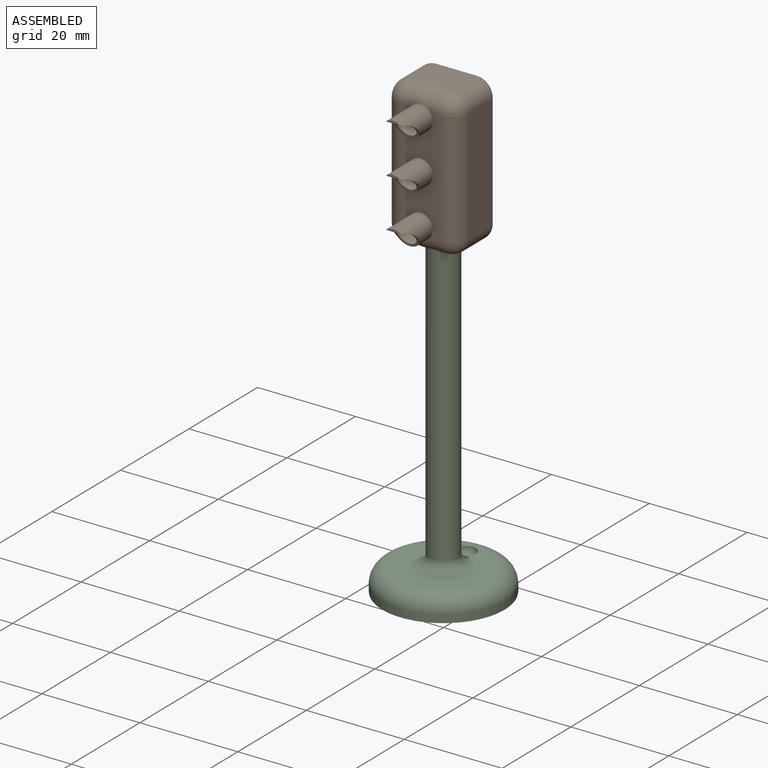
[diagram: assembled view]
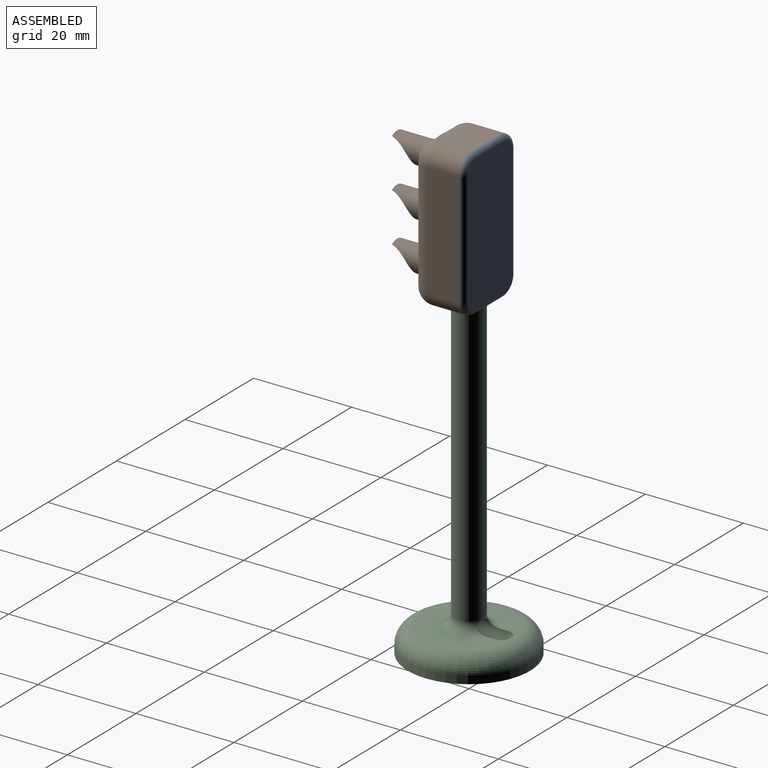
[diagram: assembled view, second angle]
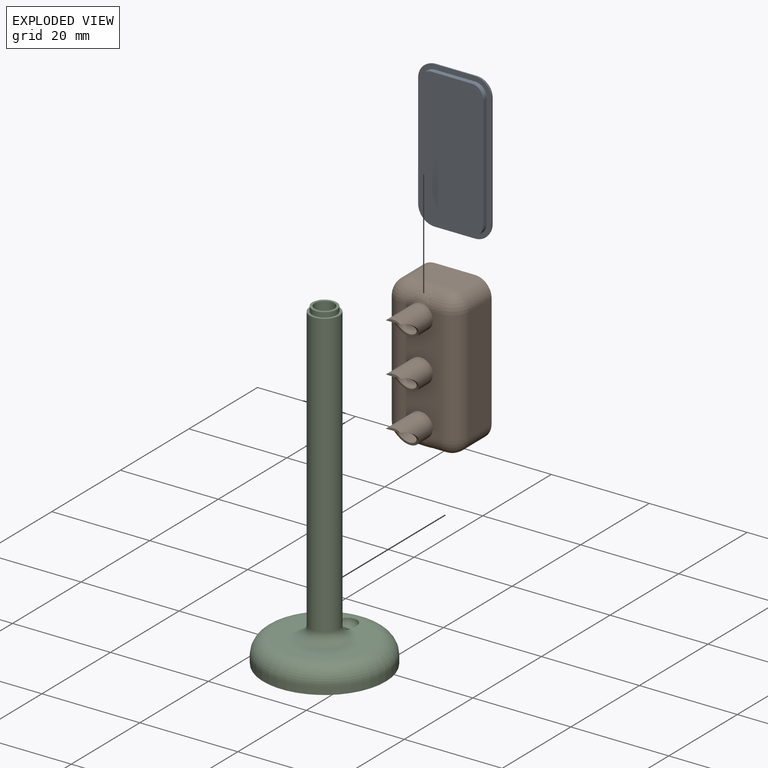
[diagram: exploded view]
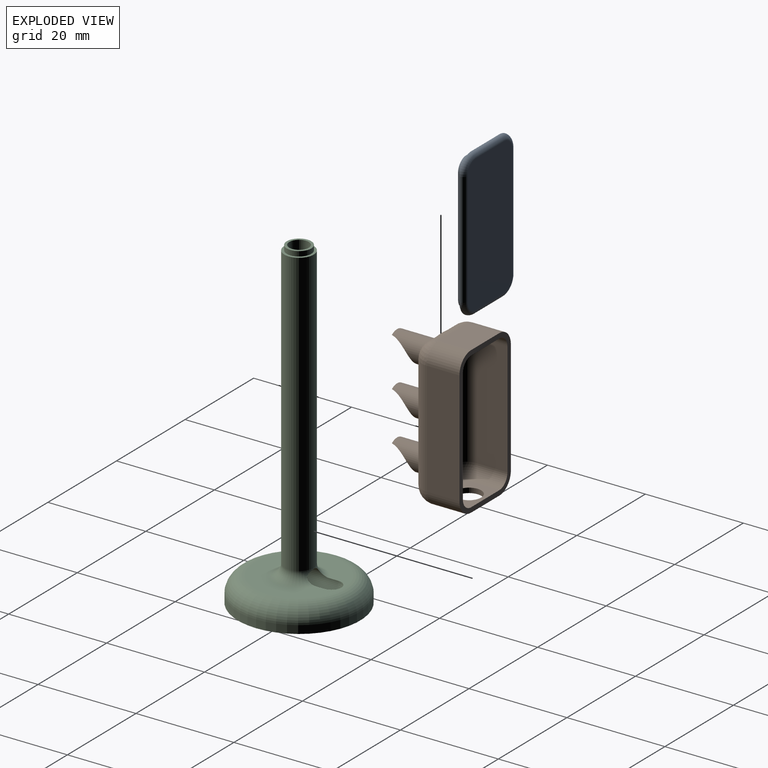
[diagram: exploded view, second angle]
ASSEMBLY  parts=3 mates=2
PART A: 19 faces, bbox 15.6x2x30.6 mm
  f0: cylinder r=2.38mm len=2.39mm, axis (0,1,0), area 3.7mm2, adj f1,f5,f8,f9
  f1: plane 8.25x1mm, normal (0,0,1), area 8.2mm2, adj f0,f2,f8,f9
  f2: cylinder r=2.38mm len=2.38mm, axis (0,1,0), area 3.7mm2, adj f1,f6,f8,f9
  f3: plane 8.24x1mm, normal (0,0,-1), area 8.2mm2, adj f4,f7,f8,f9
  f4: cylinder r=2.38mm len=2.38mm, axis (0,1,0), area 3.7mm2, adj f3,f5,f8,f9
  f5: plane 23.24x1mm, normal (-1,0,0), area 23.2mm2, adj f0,f4,f8,f9
  f6: plane 23.24x1mm, normal (1,0,0), area 23.2mm2, adj f2,f7,f8,f9
  f7: cylinder r=2.38mm len=2.38mm, axis (0,1,0), area 3.7mm2, adj f3,f6,f8,f9
  f8: plane 28x13mm, normal (0,-1,0), area 359.1mm2, adj f0,f1,f2,f3,f4,f5,f6,f7
  f9: plane 30x15mm, normal (0,-1,0), area 81.1mm2, adj f0,f1,f2,f3,f4,f5,f6,f7
  f10: plane 28x13mm, normal (0,1,0), area 359.1mm2, adj f11,f12,f13,f14,f15,f16,f17,f18
  f11: cylinder r=1mm len=8.24mm, axis (-1,0,0), area 12.9mm2, adj f9,f10,f12,f13
  f12: torus R=2.38mm, axis (0,1,0), area 7.4mm2, adj f9,f10,f11,f14
  f13: torus R=2.38mm, axis (0,1,0), area 7.4mm2, adj f9,f10,f11,f15
  f14: cylinder r=1mm len=23.24mm, axis (0,0,1), area 36.5mm2, adj f9,f10,f12,f16
  f15: cylinder r=1mm len=23.24mm, axis (0,0,-1), area 36.5mm2, adj f9,f10,f13,f17
  f16: torus R=2.38mm, axis (0,1,0), area 7.4mm2, adj f9,f10,f14,f18
  f17: torus R=2.38mm, axis (0,1,0), area 7.4mm2, adj f9,f10,f15,f18
  f18: cylinder r=1mm len=8.24mm, axis (1,0,0), area 12.9mm2, adj f9,f10,f16,f17
PART B: 56 faces, bbox 15.5x18.5x30.5 mm
  f0: plane 23.24x8.24mm, normal (0,-1,0), area 137.3mm2, adj f8,f12,f16,f20,f23,f24,f27,f30
  f1: plane 23.24x6.62mm, normal (1,0,0), area 153.9mm2, adj f2,f28,f29,f33
  f2: plane 30x15mm, normal (0,1,0), area 81.1mm2, adj f1,f3,f4,f5,f18,f19,f28,f29
  f3: plane 23.24x6.62mm, normal (-1,0,0), area 153.9mm2, adj f2,f18,f19,f20
  f4: plane 8.24x6.74mm, normal (0,0,1), area 54.8mm2, adj f2,f18,f23,f25,f27,f28
  f5: plane 8.24x6.74mm, normal (0,0,-1), area 35.1mm2, adj f2,f19,f24,f26,f29,f30,f55
  f6: plane 3x0.5mm, normal (0,-1,0), area 1mm2, adj f8,f9
  f7: cylinder r=2mm len=9mm, axis (0,1,0), area 73.5mm2, adj f9,f35
  f8: cylinder r=2.5mm len=8mm, axis (0,1,0), area 79.3mm2, adj f0,f6,f9,f26
  f9: cylinder r=5.75mm len=5mm, axis (1,0,0), area 10mm2, adj f6,f7,f8
  f10: plane 3x0.5mm, normal (0,-1,0), area 1mm2, adj f12,f13
  f11: cylinder r=2mm len=9mm, axis (0,1,0), area 73.5mm2, adj f13,f35
  f12: cylinder r=2.5mm len=8mm, axis (0,1,0), area 79.3mm2, adj f0,f10,f13,f25
  f13: cylinder r=5.75mm len=5mm, axis (1,0,0), area 10mm2, adj f10,f11,f12
  f14: plane 3x0.5mm, normal (0,-1,0), area 1mm2, adj f16,f17
  f15: cylinder r=2mm len=9mm, axis (0,1,0), area 73.5mm2, adj f17,f35
  f16: cylinder r=2.5mm len=8mm, axis (0,1,0), area 79.3mm2, adj f0,f14,f17
  f17: cylinder r=5.75mm len=5mm, axis (1,0,0), area 10mm2, adj f14,f15,f16
  f18: cylinder r=3.38mm len=6.62mm, axis (0,1,0), area 35.1mm2, adj f2,f3,f4,f21
  f19: cylinder r=3.38mm len=6.62mm, axis (0,-1,0), area 35.1mm2, adj f2,f3,f5,f22
  f20: cylinder r=3.38mm len=23.24mm, axis (0,0,-1), area 123.4mm2, adj f0,f3,f21,f22
  f21: sphere r=3.38mm, area 17.9mm2, adj f18,f20,f23
  f22: sphere r=3.38mm, area 17.9mm2, adj f19,f20,f24
  f23: cylinder r=3.38mm len=3.38mm, axis (-1,0,0), area 11.8mm2, adj f0,f4,f21,f25
  f24: cylinder r=3.38mm len=3.38mm, axis (1,0,0), area 11.8mm2, adj f0,f5,f22,f26
  f25: bspline ~3.81x3.38mm, area 17.9mm2, adj f4,f12,f23,f27
  f26: bspline ~3.81x3.38mm, area 17.9mm2, adj f5,f8,f24,f30
  f27: cylinder r=3.38mm len=3.38mm, axis (-1,0,0), area 11.8mm2, adj f0,f4,f25,f31
  f28: cylinder r=3.38mm len=6.62mm, axis (0,-1,0), area 35.1mm2, adj f1,f2,f4,f31
  f29: cylinder r=3.38mm len=6.62mm, axis (0,1,0), area 35.1mm2, adj f1,f2,f5,f32
  f30: cylinder r=3.38mm len=3.38mm, axis (1,0,0), area 11.8mm2, adj f0,f5,f26,f32
  f31: sphere r=3.38mm, area 17.9mm2, adj f27,f28,f33
  f32: sphere r=3.38mm, area 17.9mm2, adj f29,f30,f33
  f33: cylinder r=3.38mm len=23.24mm, axis (0,0,1), area 123.4mm2, adj f0,f1,f31,f32
  f34: bspline ~3.81x2.41mm, area 12.7mm2, adj f35,f38,f45,f48
  f35: plane 25.17x8.7mm, normal (0,1,0), area 157.6mm2, adj f7,f11,f15,f34,f42,f45,f46,f47
  f36: plane 23.24x6.62mm, normal (-1,0,0), area 153.9mm2, adj f2,f49,f50,f54
  f37: plane 23.24x6.62mm, normal (1,0,0), area 153.9mm2, adj f2,f40,f41,f42
  f38: plane 8.24x6.74mm, normal (0,0,-1), area 54.8mm2, adj f2,f34,f40,f45,f48,f49
  f39: plane 8.24x6.74mm, normal (0,0,1), area 35.1mm2, adj f2,f41,f46,f47,f50,f51,f55
  f40: cylinder r=2.38mm len=6.62mm, axis (0,1,0), area 24.7mm2, adj f2,f37,f38,f43
  f41: cylinder r=2.38mm len=6.62mm, axis (0,-1,0), area 24.7mm2, adj f2,f37,f39,f44
  f42: cylinder r=2.38mm len=23.24mm, axis (0,0,-1), area 86.9mm2, adj f35,f37,f43,f44
  f43: sphere r=2.38mm, area 8.9mm2, adj f40,f42,f45
  f44: sphere r=2.38mm, area 8.9mm2, adj f41,f42,f46
  f45: cylinder r=2.38mm len=2.38mm, axis (-1,0,0), area 8.3mm2, adj f34,f35,f38,f43
  f46: cylinder r=2.38mm len=2.38mm, axis (1,0,0), area 8.3mm2, adj f35,f39,f44,f47
  f47: bspline ~3.81x2.41mm, area 12.7mm2, adj f35,f39,f46,f51
  f48: cylinder r=2.38mm len=2.38mm, axis (-1,0,0), area 8.3mm2, adj f34,f35,f38,f52
  f49: cylinder r=2.38mm len=6.62mm, axis (0,-1,0), area 24.7mm2, adj f2,f36,f38,f52
  f50: cylinder r=2.38mm len=6.62mm, axis (0,1,0), area 24.7mm2, adj f2,f36,f39,f53
  f51: cylinder r=2.38mm len=2.38mm, axis (1,0,0), area 8.3mm2, adj f35,f39,f47,f53
  f52: sphere r=2.38mm, area 8.9mm2, adj f48,f49,f54
  f53: sphere r=2.38mm, area 8.9mm2, adj f50,f51,f54
  f54: cylinder r=2.38mm len=23.24mm, axis (0,0,1), area 86.9mm2, adj f35,f36,f52,f53
  f55: cylinder r=2.5mm len=5mm, axis (0,0,-1), area 15.7mm2, adj f5,f39
PART C: 13 faces, bbox 27.1x27.1x66.8 mm
  f0: cylinder r=2mm len=61mm, axis (0,0,-1), area 758.5mm2, adj f2,f10,f12
  f1: cylinder r=2.5mm len=5mm, axis (0,0,-1), area 15.7mm2, adj f2,f4
  f2: plane 5x5mm, normal (0,0,1), area 7.1mm2, adj f0,f1
  f3: cylinder r=3mm len=57.83mm, axis (0,0,1), area 1090mm2, adj f4,f9
  f4: plane 6x6mm, normal (0,0,1), area 8.6mm2, adj f1,f3
  f5: cylinder r=12.5mm len=25mm, axis (0,0,1), area 127.2mm2, adj f6,f8
  f6: plane 25x25mm, normal (0,0,-1), area 490.9mm2, adj f5
  f7: plane 18.24x18.24mm, normal (0,0,1), area 164.7mm2, adj f8,f9,f10,f11
  f8: torus R=9.12mm, axis (0,0,-1), area 376mm2, adj f5,f7
  f9: torus R=5.17mm, axis (0,0,-1), area 69.7mm2, adj f3,f7,f10
  f10: cylinder r=2mm len=6.61mm, axis (0,-1,0), area 52.7mm2, adj f0,f7,f9,f11,f12
  f11: sphere r=2mm, area 12.6mm2, adj f7,f10
  f12: sphere r=2mm, area 12.6mm2, adj f0,f10
PLACE A t=(7.5,-6.69,65)mm
PLACE B t=(7.5,-6.69,65)mm
PLACE C t=(7.5,-6.69,65)mm
MATE fastened B.f2 <-> A.f9  axis (0,1,0) through (0,3.31,94)mm
MATE fastened B.f55 <-> C.f0  axis (0,0,-1) through (0,0,65)mm
